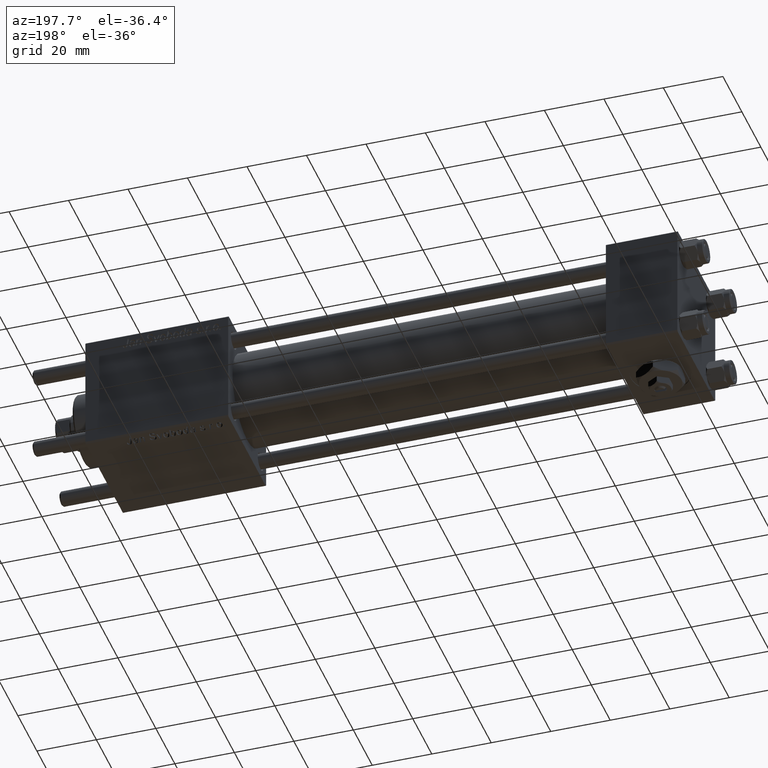
[diagram: clean part render]
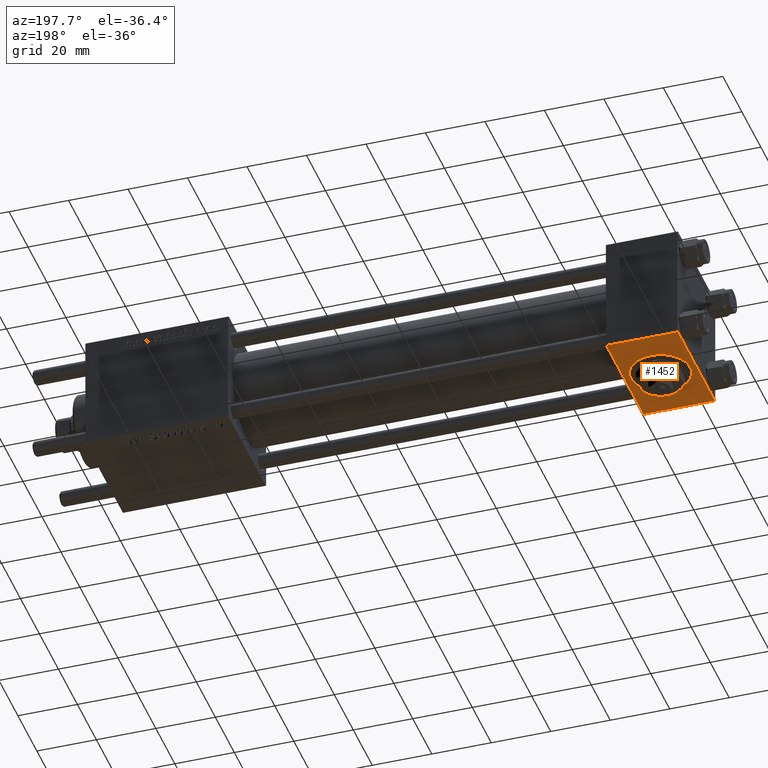
[diagram: same view with one face highlighted and labeled with its STEP entity id]
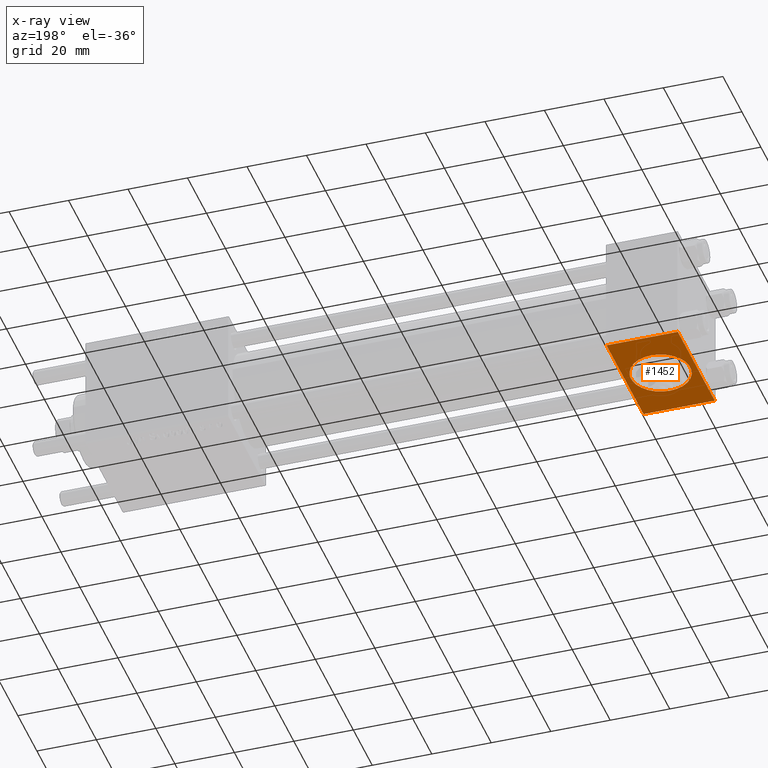
[diagram: x-ray of the same camera — body ghosted, the highlighted face saturated]
A machine part, auxiliary view. The second image highlights one B-rep face of the part: STEP entity #1452.
The next image is the same camera in x-ray: the body ghosted, the highlighted face saturated — about 0% of this face is hidden behind the body in this view.
In plain terms, the highlighted planar face has unit normal (0, -0, -1).
Its self-contained STEP definition (entity closure, byte-faithful):
#1452 = ADVANCED_FACE ( 'NONE', ( #49141, #52991 ), #53574, .T. ) ;
#1801 = CARTESIAN_POINT ( 'NONE',  ( 0.000000000000000000, -19.50000000000000711, -20.00000000000000000 ) ) ;
#3162 = ORIENTED_EDGE ( 'NONE', *, *, #43282, .T. ) ;
#5091 = EDGE_LOOP ( 'NONE', ( #23160, #10344, #3162, #35436 ) ) ;
#7156 = CARTESIAN_POINT ( 'NONE',  ( 0.000000000000000000, 19.50000000000000711, -20.00000000000000711 ) ) ;
#9106 = EDGE_CURVE ( 'NONE', #50677, #41356, #12479, .T. ) ;
#10344 = ORIENTED_EDGE ( 'NONE', *, *, #12634, .T. ) ;
#10367 = DIRECTION ( 'NONE',  ( 0.000000000000000000, -1.734723475976806848E-16, -1.000000000000000000 ) ) ;
#11066 = VECTOR ( 'NONE', #16963, 1000.000000000000000 ) ;
#11621 = VERTEX_POINT ( 'NONE', #13468 ) ;
#12479 = LINE ( 'NONE', #26340, #51684 ) ;
#12634 = EDGE_CURVE ( 'NONE', #50677, #33254, #20828, .T. ) ;
#13468 = CARTESIAN_POINT ( 'NONE',  ( 12.00000000000000178, -10.00000000000000711, -20.00000000000000355 ) ) ;
#15393 = DIRECTION ( 'NONE',  ( 0.000000000000000000, -1.734723475976806848E-16, -1.000000000000000000 ) ) ;
#16679 = CARTESIAN_POINT ( 'NONE',  ( 24.00000000000000000, 19.50000000000000711, -20.00000000000000711 ) ) ;
#16963 = DIRECTION ( 'NONE',  ( 1.000000000000000000, 0.000000000000000000, 0.000000000000000000 ) ) ;
#17792 = DIRECTION ( 'NONE',  ( 0.000000000000000000, 1.000000000000000000, -1.734723475976806848E-16 ) ) ;
#18947 = DIRECTION ( 'NONE',  ( -1.000000000000000000, 0.000000000000000000, 0.000000000000000000 ) ) ;
#18949 = CARTESIAN_POINT ( 'NONE',  ( 12.00000000000000000, -4.939023110930437544E-15, -20.00000000000000355 ) ) ;
#20828 = LINE ( 'NONE', #16679, #11066 ) ;
#23160 = ORIENTED_EDGE ( 'NONE', *, *, #9106, .F. ) ;
#26340 = CARTESIAN_POINT ( 'NONE',  ( 0.000000000000000000, 20.00000000000000000, -20.00000000000000711 ) ) ;
#26828 = AXIS2_PLACEMENT_3D ( 'NONE', #26942, #53274, #17792 ) ;
#26942 = CARTESIAN_POINT ( 'NONE',  ( 24.00000000000000000, 20.00000000000000000, -20.00000000000000711 ) ) ;
#28817 = VERTEX_POINT ( 'NONE', #43079 ) ;
#29802 = CIRCLE ( 'NONE', #45876, 10.00000000000000178 ) ;
#30204 = DIRECTION ( 'NONE',  ( 0.000000000000000000, -1.000000000000000000, 1.734723475976807094E-16 ) ) ;
#31359 = DIRECTION ( 'NONE',  ( 0.000000000000000000, -1.000000000000000000, 1.734723475976807094E-16 ) ) ;
#31736 = VECTOR ( 'NONE', #18947, 1000.000000000000000 ) ;
#32663 = EDGE_CURVE ( 'NONE', #36643, #11621, #29802, .T. ) ;
#33254 = VERTEX_POINT ( 'NONE', #39665 ) ;
#34093 = LINE ( 'NONE', #42974, #42287 ) ;
#34986 = EDGE_CURVE ( 'NONE', #11621, #36643, #35511, .T. ) ;
#35436 = ORIENTED_EDGE ( 'NONE', *, *, #39998, .T. ) ;
#35511 = CIRCLE ( 'NONE', #41183, 10.00000000000000178 ) ;
#36643 = VERTEX_POINT ( 'NONE', #55920 ) ;
#37555 = CARTESIAN_POINT ( 'NONE',  ( 12.00000000000000000, -4.939023110930437544E-15, -20.00000000000000355 ) ) ;
#39665 = CARTESIAN_POINT ( 'NONE',  ( 24.00000000000000000, 19.50000000000000711, -20.00000000000000711 ) ) ;
#39998 = EDGE_CURVE ( 'NONE', #28817, #41356, #55007, .T. ) ;
#41183 = AXIS2_PLACEMENT_3D ( 'NONE', #37555, #15393, #41987 ) ;
#41356 = VERTEX_POINT ( 'NONE', #51984 ) ;
#41987 = DIRECTION ( 'NONE',  ( 0.000000000000000000, 1.000000000000000000, 0.000000000000000000 ) ) ;
#42287 = VECTOR ( 'NONE', #30204, 1000.000000000000000 ) ;
#42974 = CARTESIAN_POINT ( 'NONE',  ( 24.00000000000000000, 20.00000000000000000, -20.00000000000000711 ) ) ;
#43079 = CARTESIAN_POINT ( 'NONE',  ( 24.00000000000000000, -19.50000000000000711, -20.00000000000000000 ) ) ;
#43282 = EDGE_CURVE ( 'NONE', #33254, #28817, #34093, .T. ) ;
#45876 = AXIS2_PLACEMENT_3D ( 'NONE', #18949, #10367, #50875 ) ;
#47056 = ORIENTED_EDGE ( 'NONE', *, *, #34986, .F. ) ;
#49141 = FACE_BOUND ( 'NONE', #52672, .T. ) ;
#49693 = ORIENTED_EDGE ( 'NONE', *, *, #32663, .F. ) ;
#50677 = VERTEX_POINT ( 'NONE', #7156 ) ;
#50875 = DIRECTION ( 'NONE',  ( 0.000000000000000000, 1.000000000000000000, 0.000000000000000000 ) ) ;
#51684 = VECTOR ( 'NONE', #31359, 1000.000000000000000 ) ;
#51984 = CARTESIAN_POINT ( 'NONE',  ( 0.000000000000000000, -19.50000000000000711, -20.00000000000000000 ) ) ;
#52672 = EDGE_LOOP ( 'NONE', ( #49693, #47056 ) ) ;
#52991 = FACE_OUTER_BOUND ( 'NONE', #5091, .T. ) ;
#53274 = DIRECTION ( 'NONE',  ( 0.000000000000000000, -1.734723475976806848E-16, -1.000000000000000000 ) ) ;
#53574 = PLANE ( 'NONE',  #26828 ) ;
#55007 = LINE ( 'NONE', #1801, #31736 ) ;
#55920 = CARTESIAN_POINT ( 'NONE',  ( 12.00000000000000000, 9.999999999999996447, -20.00000000000000355 ) ) ;